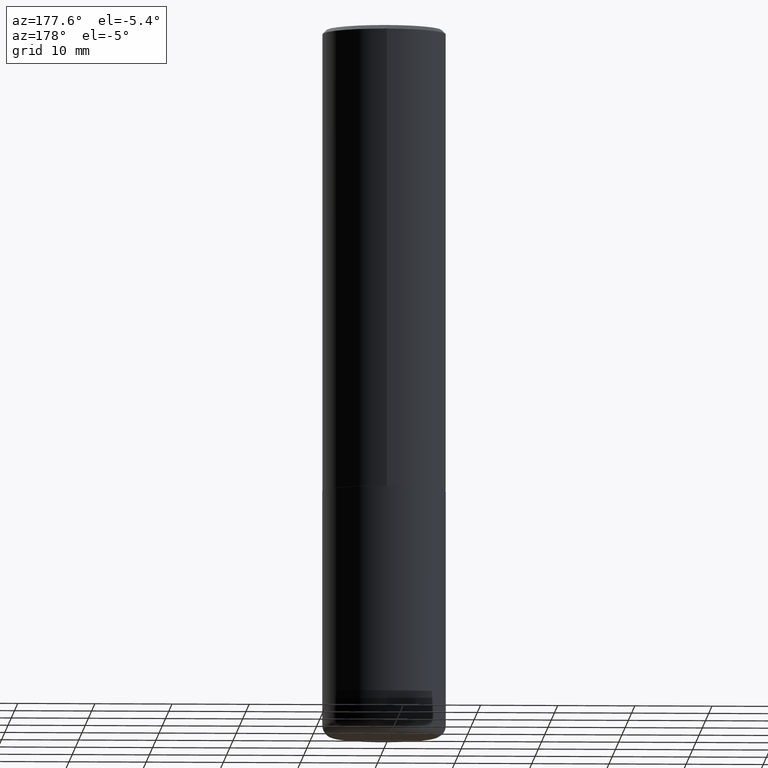
[diagram: clean part render]
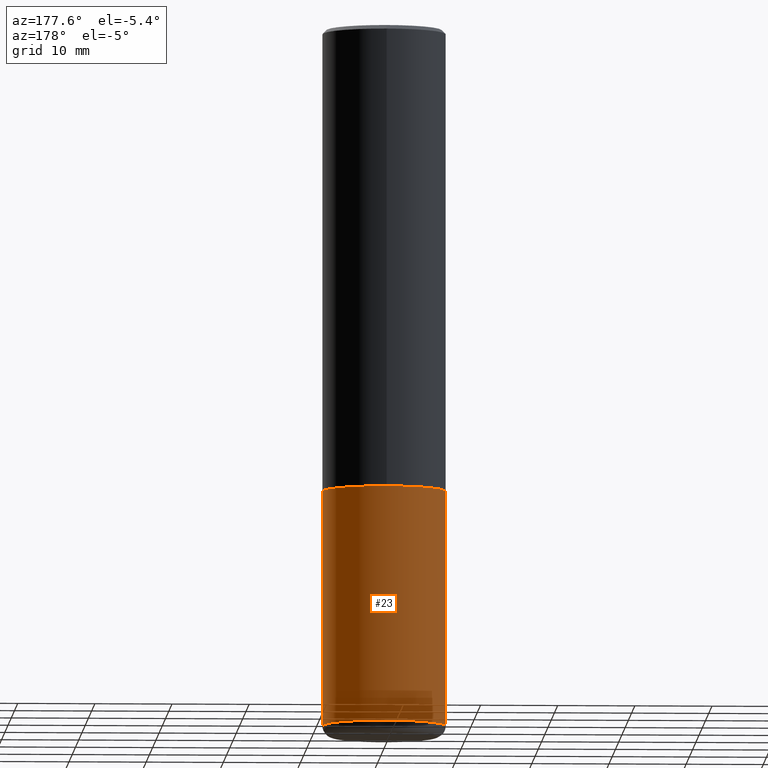
[diagram: same view with one face highlighted and labeled with its STEP entity id]
A machine part, auxiliary view. The second image highlights one B-rep face of the part: STEP entity #23.
In plain terms, the highlighted cylindrical surface (partial cylindrical patch) has radius 7.9997 mm, axis along (-0, 0, 1).
Its self-contained STEP definition (entity closure, byte-faithful):
#5 = VECTOR ( 'NONE', #63, 39.37007874015748143 ) ;
#15 = CARTESIAN_POINT ( 'NONE',  ( 0.3149500000000000077, -1.044686131395256792E-14, -2.362199999999999633 ) ) ;
#17 = VERTEX_POINT ( 'NONE', #15 ) ;
#23 = ADVANCED_FACE ( 'NONE', ( #142 ), #276, .T. ) ;
#33 = AXIS2_PLACEMENT_3D ( 'NONE', #263, #393, #100 ) ;
#59 = DIRECTION ( 'NONE',  ( -2.445468806185136877E-29, 3.491481338843145188E-15, 1.000000000000000000 ) ) ;
#63 = DIRECTION ( 'NONE',  ( -2.445468806185136877E-29, 3.491481338843145188E-15, 1.000000000000000000 ) ) ;
#65 = CARTESIAN_POINT ( 'NONE',  ( -0.3149500000000000077, -8.104611675644729966E-15, -2.362199999999999633 ) ) ;
#79 = DIRECTION ( 'NONE',  ( -2.445468806185136597E-29, 3.491481338843145583E-15, 1.000000000000000000 ) ) ;
#96 = DIRECTION ( 'NONE',  ( 1.000000000000000000, -6.982962677686266711E-15, 0.000000000000000000 ) ) ;
#100 = DIRECTION ( 'NONE',  ( 1.000000000000000000, -6.982962677686268288E-15, 0.000000000000000000 ) ) ;
#101 = VERTEX_POINT ( 'NONE', #188 ) ;
#112 = VERTEX_POINT ( 'NONE', #284 ) ;
#113 = ORIENTED_EDGE ( 'NONE', *, *, #122, .T. ) ;
#115 = AXIS2_PLACEMENT_3D ( 'NONE', #257, #333, #96 ) ;
#118 = LINE ( 'NONE', #155, #5 ) ;
#122 = EDGE_CURVE ( 'NONE', #101, #361, #183, .T. ) ;
#140 = EDGE_CURVE ( 'NONE', #112, #17, #118, .T. ) ;
#142 = FACE_OUTER_BOUND ( 'NONE', #216, .T. ) ;
#144 = DIRECTION ( 'NONE',  ( 1.000000000000000000, -6.982962677686266711E-15, 4.876176775795936353E-29 ) ) ;
#155 = CARTESIAN_POINT ( 'NONE',  ( 0.3149500000000000077, -2.199284095337289871E-15, 1.535751875536930130E-29 ) ) ;
#171 = ORIENTED_EDGE ( 'NONE', *, *, #384, .T. ) ;
#183 = LINE ( 'NONE', #350, #189 ) ;
#188 = CARTESIAN_POINT ( 'NONE',  ( -0.3149500000000001743, -1.019950047895061313E-14, -3.562199999999999367 ) ) ;
#189 = VECTOR ( 'NONE', #59, 39.37007874015748143 ) ;
#205 = ORIENTED_EDGE ( 'NONE', *, *, #140, .F. ) ;
#213 = ORIENTED_EDGE ( 'NONE', *, *, #306, .F. ) ;
#216 = EDGE_LOOP ( 'NONE', ( #171, #113, #213, #205 ) ) ;
#257 = CARTESIAN_POINT ( 'NONE',  ( 5.776686413970529753E-29, -8.247577218615278049E-15, -2.362199999999999633 ) ) ;
#263 = CARTESIAN_POINT ( 'NONE',  ( 8.711248981392691651E-29, -1.243735482522705070E-14, -3.562199999999999367 ) ) ;
#266 = CIRCLE ( 'NONE', #33, 0.3149500000000000632 ) ;
#272 = CARTESIAN_POINT ( 'NONE',  ( 0.000000000000000000, 0.000000000000000000, 0.000000000000000000 ) ) ;
#274 = CIRCLE ( 'NONE', #115, 0.3149500000000000077 ) ;
#276 = CYLINDRICAL_SURFACE ( 'NONE', #294, 0.3149500000000000077 ) ;
#284 = CARTESIAN_POINT ( 'NONE',  ( 0.3149500000000001743, -1.463663892056434215E-14, -3.562199999999999367 ) ) ;
#294 = AXIS2_PLACEMENT_3D ( 'NONE', #272, #79, #144 ) ;
#306 = EDGE_CURVE ( 'NONE', #17, #361, #274, .T. ) ;
#333 = DIRECTION ( 'NONE',  ( -2.445468806185136597E-29, 3.491481338843145583E-15, 1.000000000000000000 ) ) ;
#350 = CARTESIAN_POINT ( 'NONE',  ( -0.3149500000000000077, 2.237854346276435590E-15, -1.549218606675782676E-29 ) ) ;
#361 = VERTEX_POINT ( 'NONE', #65 ) ;
#384 = EDGE_CURVE ( 'NONE', #112, #101, #266, .T. ) ;
#393 = DIRECTION ( 'NONE',  ( -2.445468806185136597E-29, 3.491481338843145583E-15, 1.000000000000000000 ) ) ;